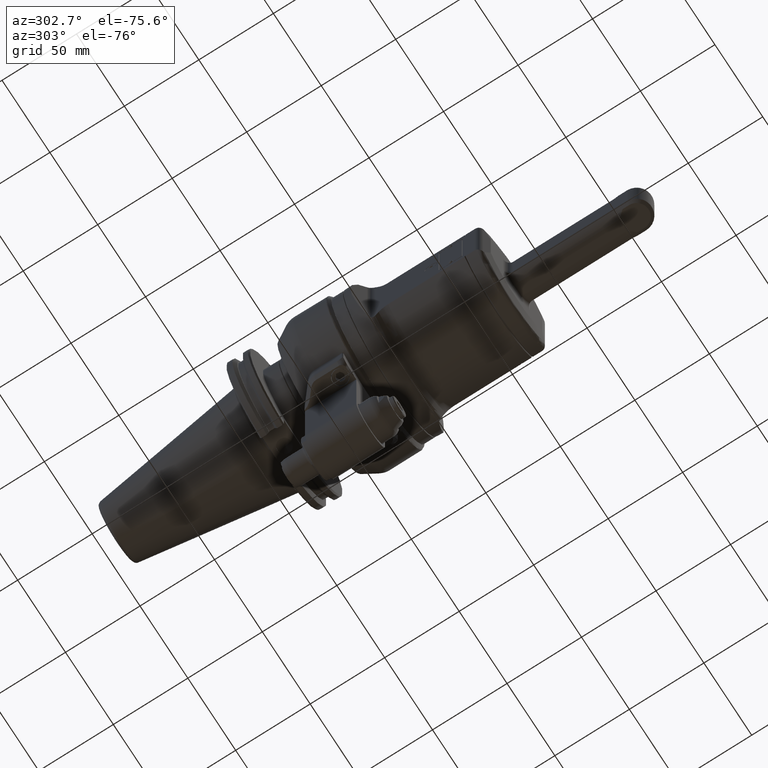
[diagram: clean part render]
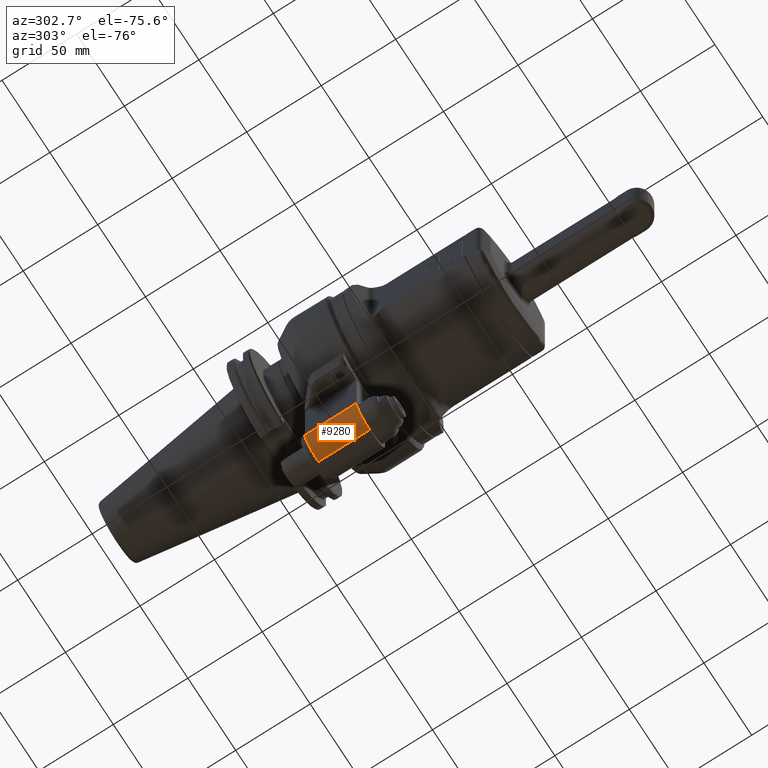
[diagram: same view with one face highlighted and labeled with its STEP entity id]
A machine part, auxiliary view. The second image highlights one B-rep face of the part: STEP entity #9280.
In plain terms, the highlighted cylindrical surface (edge-blend (fillet) strip) has radius 14 mm, axis along (0, -1, 0).
Its self-contained STEP definition (entity closure, byte-faithful):
#535=LINE('',#15332,#1187);
#536=LINE('',#15334,#1188);
#1187=VECTOR('',#11709,34.5);
#1188=VECTOR('',#11712,34.5);
#1710=CYLINDRICAL_SURFACE('',#10084,14.);
#2298=FACE_OUTER_BOUND('',#2889,.T.);
#2889=EDGE_LOOP('',(#7039,#7040,#7041,#7042));
#3447=CIRCLE('',#9908,14.);
#3540=CIRCLE('',#10076,14.);
#4049=VERTEX_POINT('',#14454);
#4050=VERTEX_POINT('',#14456);
#4200=VERTEX_POINT('',#15308);
#4201=VERTEX_POINT('',#15310);
#5030=EDGE_CURVE('',#4049,#4050,#3447,.T.);
#5254=EDGE_CURVE('',#4200,#4201,#3540,.T.);
#5264=EDGE_CURVE('',#4049,#4201,#535,.T.);
#5265=EDGE_CURVE('',#4200,#4050,#536,.T.);
#7039=ORIENTED_EDGE('',*,*,#5264,.T.);
#7040=ORIENTED_EDGE('',*,*,#5254,.F.);
#7041=ORIENTED_EDGE('',*,*,#5265,.T.);
#7042=ORIENTED_EDGE('',*,*,#5030,.F.);
#9280=ADVANCED_FACE('',(#2298),#1710,.T.);
#9908=AXIS2_PLACEMENT_3D('',#14457,#11268,#11269);
#10076=AXIS2_PLACEMENT_3D('',#15311,#11687,#11688);
#10084=AXIS2_PLACEMENT_3D('',#15333,#11710,#11711);
#11268=DIRECTION('center_axis',(0.,1.,0.));
#11269=DIRECTION('ref_axis',(0.,0.,-1.));
#11687=DIRECTION('center_axis',(0.,-1.,0.));
#11688=DIRECTION('ref_axis',(-1.,0.,0.));
#11709=DIRECTION('',(0.,-1.,0.));
#11710=DIRECTION('center_axis',(0.,-1.,0.));
#11711=DIRECTION('ref_axis',(0.,0.,-1.));
#11712=DIRECTION('',(0.,1.,0.));
#14454=CARTESIAN_POINT('',(-1.,39.5,-126.));
#14456=CARTESIAN_POINT('',(-15.,39.5,-112.));
#14457=CARTESIAN_POINT('Origin',(-1.,39.5,-112.));
#15308=CARTESIAN_POINT('',(-15.,5.,-112.));
#15310=CARTESIAN_POINT('',(-1.,5.,-126.));
#15311=CARTESIAN_POINT('Origin',(-1.,5.,-112.));
#15332=CARTESIAN_POINT('',(-1.,39.5,-126.));
#15333=CARTESIAN_POINT('Origin',(-1.,31.,-112.));
#15334=CARTESIAN_POINT('',(-15.,5.,-112.));